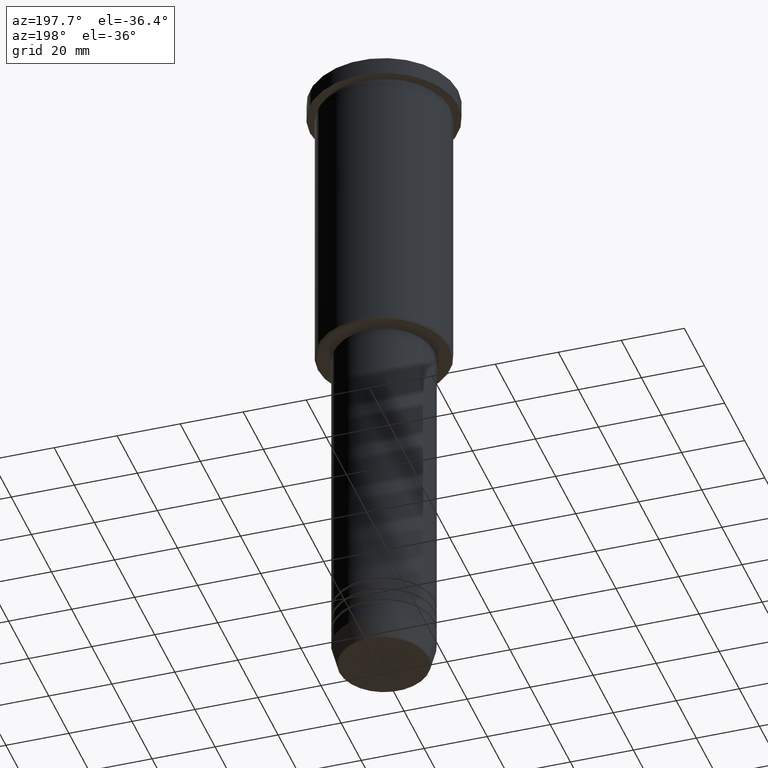
[diagram: clean part render]
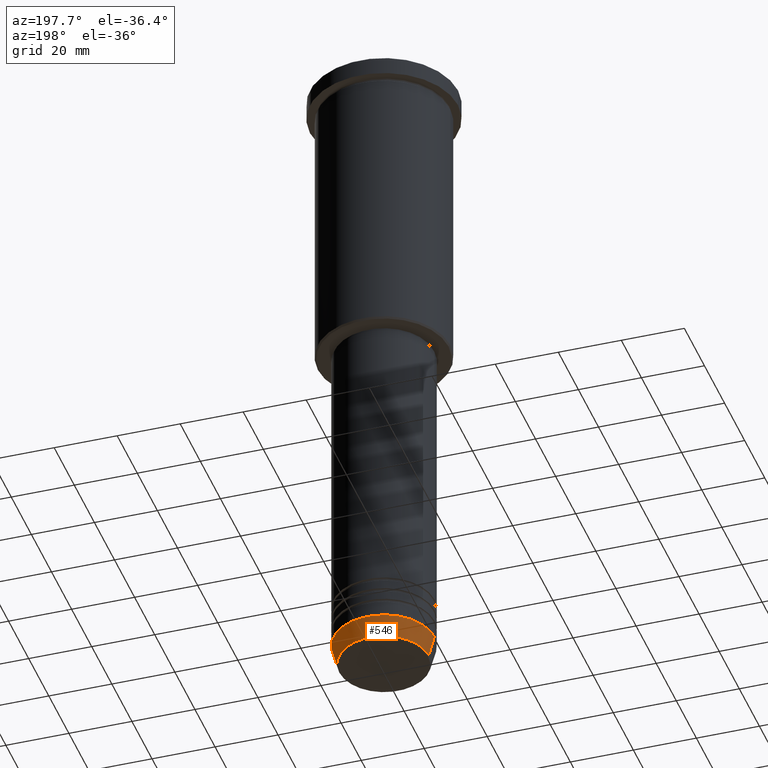
[diagram: same view with one face highlighted and labeled with its STEP entity id]
A machine part, auxiliary view. The second image highlights one B-rep face of the part: STEP entity #546.
In plain terms, the highlighted conical surface has half-angle 15 deg.
Its self-contained STEP definition (entity closure, byte-faithful):
#80 = AXIS2_PLACEMENT_3D ( 'NONE', #565, #495, #661 ) ;
#91 = DIRECTION ( 'NONE',  ( -0.2588190451025213501, 3.169619151431772337E-17, 0.9659258262890680902 ) ) ;
#109 = VERTEX_POINT ( 'NONE', #497 ) ;
#112 = CARTESIAN_POINT ( 'NONE',  ( 16.00000000000000000, 0.000000000000000000, -204.0000000000000284 ) ) ;
#187 = CARTESIAN_POINT ( 'NONE',  ( -16.00000000000000000, 1.959434878635765131E-15, -204.0000000000000284 ) ) ;
#197 = CIRCLE ( 'NONE', #750, 16.00000000000000000 ) ;
#212 = EDGE_LOOP ( 'NONE', ( #693, #357, #591, #346 ) ) ;
#213 = CARTESIAN_POINT ( 'NONE',  ( -14.22365507213718239, 1.850665122131322942E-15, -210.6294095225512706 ) ) ;
#216 = FACE_OUTER_BOUND ( 'NONE', #212, .T. ) ;
#249 = EDGE_CURVE ( 'NONE', #965, #109, #741, .T. ) ;
#262 = DIRECTION ( 'NONE',  ( 1.000000000000000000, 0.000000000000000000, 0.000000000000000000 ) ) ;
#324 = DIRECTION ( 'NONE',  ( 1.000000000000000000, 0.000000000000000000, 0.000000000000000000 ) ) ;
#346 = ORIENTED_EDGE ( 'NONE', *, *, #583, .F. ) ;
#357 = ORIENTED_EDGE ( 'NONE', *, *, #249, .T. ) ;
#362 = VERTEX_POINT ( 'NONE', #872 ) ;
#426 = CARTESIAN_POINT ( 'NONE',  ( 16.00000000000000000, 0.000000000000000000, -204.0000000000000284 ) ) ;
#465 = VECTOR ( 'NONE', #856, 1000.000000000000000 ) ;
#495 = DIRECTION ( 'NONE',  ( -0.000000000000000000, -0.000000000000000000, 1.000000000000000000 ) ) ;
#497 = CARTESIAN_POINT ( 'NONE',  ( -16.00000000000000000, 1.959434878635765131E-15, -204.0000000000000284 ) ) ;
#516 = CARTESIAN_POINT ( 'NONE',  ( 0.000000000000000000, 0.000000000000000000, -204.0000000000000284 ) ) ;
#523 = VECTOR ( 'NONE', #91, 1000.000000000000000 ) ;
#546 = ADVANCED_FACE ( 'NONE', ( #216 ), #598, .T. ) ;
#565 = CARTESIAN_POINT ( 'NONE',  ( 0.000000000000000000, 0.000000000000000000, -204.0000000000000284 ) ) ;
#583 = EDGE_CURVE ( 'NONE', #362, #754, #669, .T. ) ;
#591 = ORIENTED_EDGE ( 'NONE', *, *, #679, .F. ) ;
#598 = CONICAL_SURFACE ( 'NONE', #80, 16.00000000000000000, 0.2617993877991500740 ) ;
#618 = CIRCLE ( 'NONE', #1117, 14.22365507213718239 ) ;
#627 = DIRECTION ( 'NONE',  ( -0.000000000000000000, -0.000000000000000000, 1.000000000000000000 ) ) ;
#661 = DIRECTION ( 'NONE',  ( 1.000000000000000000, 0.000000000000000000, 0.000000000000000000 ) ) ;
#669 = LINE ( 'NONE', #112, #465 ) ;
#679 = EDGE_CURVE ( 'NONE', #754, #109, #197, .T. ) ;
#693 = ORIENTED_EDGE ( 'NONE', *, *, #852, .T. ) ;
#741 = LINE ( 'NONE', #187, #523 ) ;
#750 = AXIS2_PLACEMENT_3D ( 'NONE', #516, #1140, #324 ) ;
#754 = VERTEX_POINT ( 'NONE', #426 ) ;
#820 = CARTESIAN_POINT ( 'NONE',  ( 0.000000000000000000, 0.000000000000000000, -210.6294095225512706 ) ) ;
#852 = EDGE_CURVE ( 'NONE', #362, #965, #618, .T. ) ;
#856 = DIRECTION ( 'NONE',  ( 0.2588190451025213501, 0.000000000000000000, 0.9659258262890680902 ) ) ;
#872 = CARTESIAN_POINT ( 'NONE',  ( 14.22365507213718239, 0.000000000000000000, -210.6294095225512706 ) ) ;
#965 = VERTEX_POINT ( 'NONE', #213 ) ;
#1117 = AXIS2_PLACEMENT_3D ( 'NONE', #820, #627, #262 ) ;
#1140 = DIRECTION ( 'NONE',  ( -0.000000000000000000, -0.000000000000000000, 1.000000000000000000 ) ) ;